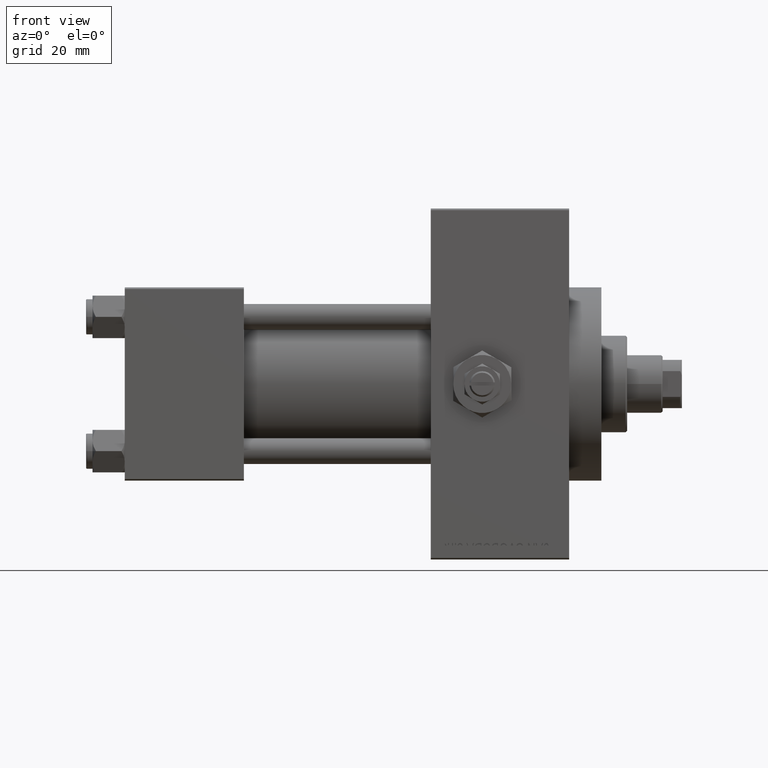
[diagram: clean part render]
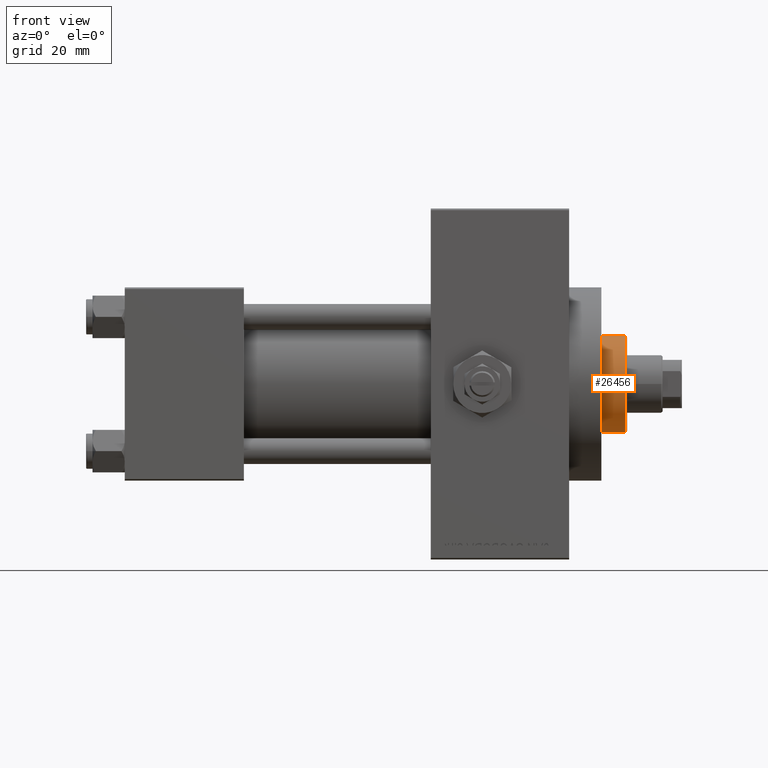
[diagram: same view with one face highlighted and labeled with its STEP entity id]
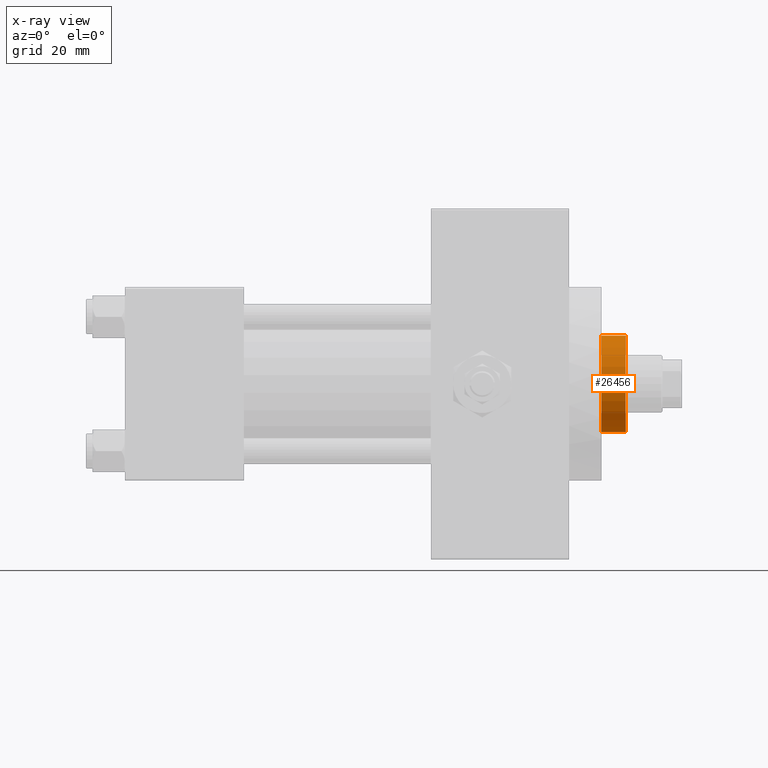
[diagram: x-ray of the same camera — body ghosted, the highlighted face saturated]
A machine part, front view. The second image highlights one B-rep face of the part: STEP entity #26456.
The next image is the same camera in x-ray: the body ghosted, the highlighted face saturated — about 0% of this face is hidden behind the body in this view.
In plain terms, the highlighted cylindrical surface (partial cylindrical patch) has radius 15 mm, axis along (-1, 0, 0).
Its self-contained STEP definition (entity closure, byte-faithful):
#1148 = CYLINDRICAL_SURFACE ( 'NONE', #22263, 15.00000000000000000 ) ;
#1336 = EDGE_LOOP ( 'NONE', ( #42314, #21261, #11061, #10411 ) ) ;
#2240 = VERTEX_POINT ( 'NONE', #30565 ) ;
#3720 = CARTESIAN_POINT ( 'NONE',  ( -15.00000000000000000, 0.000000000000000000, 51.25999999999999801 ) ) ;
#4949 = DIRECTION ( 'NONE',  ( 1.000000000000000000, 0.000000000000000000, 0.000000000000000000 ) ) ;
#8281 = CARTESIAN_POINT ( 'NONE',  ( 15.00000000000000000, 1.836970198721029589E-15, 50.75999999999998380 ) ) ;
#10006 = CARTESIAN_POINT ( 'NONE',  ( -15.00000000000000000, 0.000000000000000000, 50.75999999999998380 ) ) ;
#10411 = ORIENTED_EDGE ( 'NONE', *, *, #20658, .F. ) ;
#11061 = ORIENTED_EDGE ( 'NONE', *, *, #18116, .T. ) ;
#11218 = VERTEX_POINT ( 'NONE', #8281 ) ;
#13581 = CARTESIAN_POINT ( 'NONE',  ( 0.000000000000000000, 0.000000000000000000, 50.75999999999998380 ) ) ;
#16248 = CARTESIAN_POINT ( 'NONE',  ( 0.000000000000000000, 0.000000000000000000, 51.25999999999999801 ) ) ;
#18116 = EDGE_CURVE ( 'NONE', #2240, #43428, #30798, .T. ) ;
#19005 = AXIS2_PLACEMENT_3D ( 'NONE', #13581, #47493, #4949 ) ;
#20658 = EDGE_CURVE ( 'NONE', #44880, #43428, #25754, .T. ) ;
#21261 = ORIENTED_EDGE ( 'NONE', *, *, #46850, .T. ) ;
#21348 = DIRECTION ( 'NONE',  ( -0.000000000000000000, -0.000000000000000000, -1.000000000000000000 ) ) ;
#22263 = AXIS2_PLACEMENT_3D ( 'NONE', #16248, #35321, #27153 ) ;
#23684 = FACE_OUTER_BOUND ( 'NONE', #1336, .T. ) ;
#25754 = LINE ( 'NONE', #3720, #39443 ) ;
#26254 = DIRECTION ( 'NONE',  ( -0.000000000000000000, -0.000000000000000000, -1.000000000000000000 ) ) ;
#26456 = ADVANCED_FACE ( 'NONE', ( #23684 ), #1148, .T. ) ;
#27153 = DIRECTION ( 'NONE',  ( -1.000000000000000000, 0.000000000000000000, 0.000000000000000000 ) ) ;
#30565 = CARTESIAN_POINT ( 'NONE',  ( 15.00000000000000000, 1.836970198721029589E-15, 43.25999999999999801 ) ) ;
#30798 = CIRCLE ( 'NONE', #45030, 15.00000000000000000 ) ;
#32295 = DIRECTION ( 'NONE',  ( 0.000000000000000000, 0.000000000000000000, 1.000000000000000000 ) ) ;
#35321 = DIRECTION ( 'NONE',  ( -0.000000000000000000, -0.000000000000000000, -1.000000000000000000 ) ) ;
#35532 = DIRECTION ( 'NONE',  ( 1.000000000000000000, 0.000000000000000000, 0.000000000000000000 ) ) ;
#39443 = VECTOR ( 'NONE', #26254, 1000.000000000000000 ) ;
#39692 = LINE ( 'NONE', #40676, #48309 ) ;
#40676 = CARTESIAN_POINT ( 'NONE',  ( 15.00000000000000000, 1.836970198721029589E-15, 51.25999999999999801 ) ) ;
#42314 = ORIENTED_EDGE ( 'NONE', *, *, #43377, .T. ) ;
#42842 = CARTESIAN_POINT ( 'NONE',  ( -15.00000000000000000, 0.000000000000000000, 43.25999999999999801 ) ) ;
#43212 = CARTESIAN_POINT ( 'NONE',  ( 0.000000000000000000, 0.000000000000000000, 43.25999999999999801 ) ) ;
#43377 = EDGE_CURVE ( 'NONE', #44880, #11218, #48157, .T. ) ;
#43428 = VERTEX_POINT ( 'NONE', #42842 ) ;
#44880 = VERTEX_POINT ( 'NONE', #10006 ) ;
#45030 = AXIS2_PLACEMENT_3D ( 'NONE', #43212, #32295, #35532 ) ;
#46850 = EDGE_CURVE ( 'NONE', #11218, #2240, #39692, .T. ) ;
#47493 = DIRECTION ( 'NONE',  ( 0.000000000000000000, 0.000000000000000000, -1.000000000000000000 ) ) ;
#48157 = CIRCLE ( 'NONE', #19005, 15.00000000000000000 ) ;
#48309 = VECTOR ( 'NONE', #21348, 1000.000000000000000 ) ;